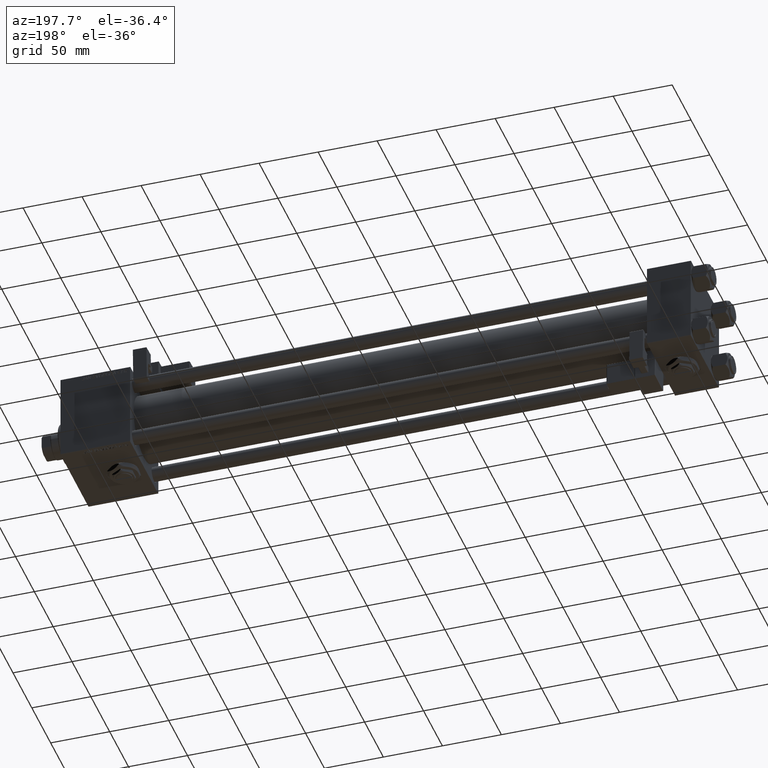
[diagram: clean part render]
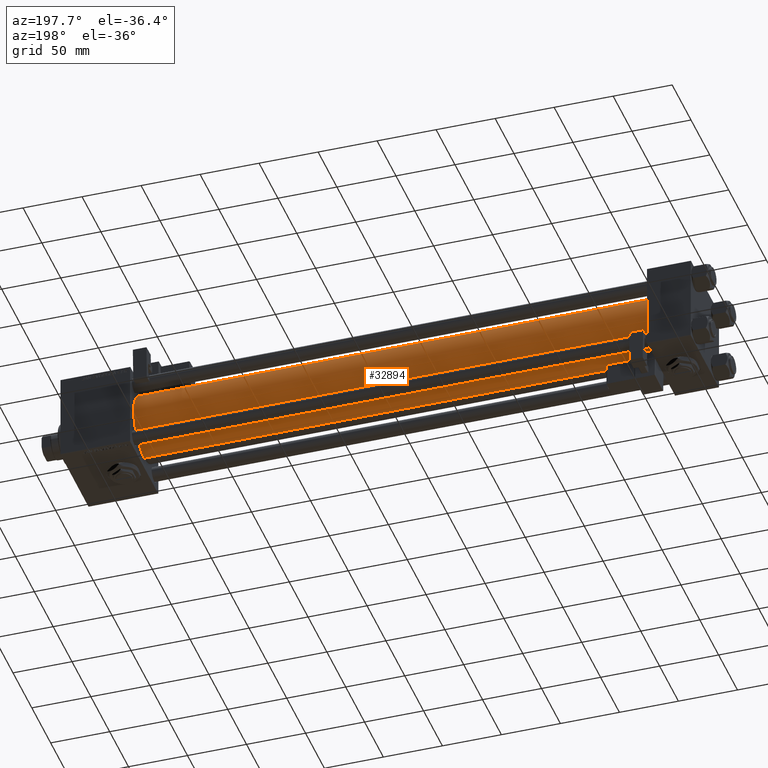
[diagram: same view with one face highlighted and labeled with its STEP entity id]
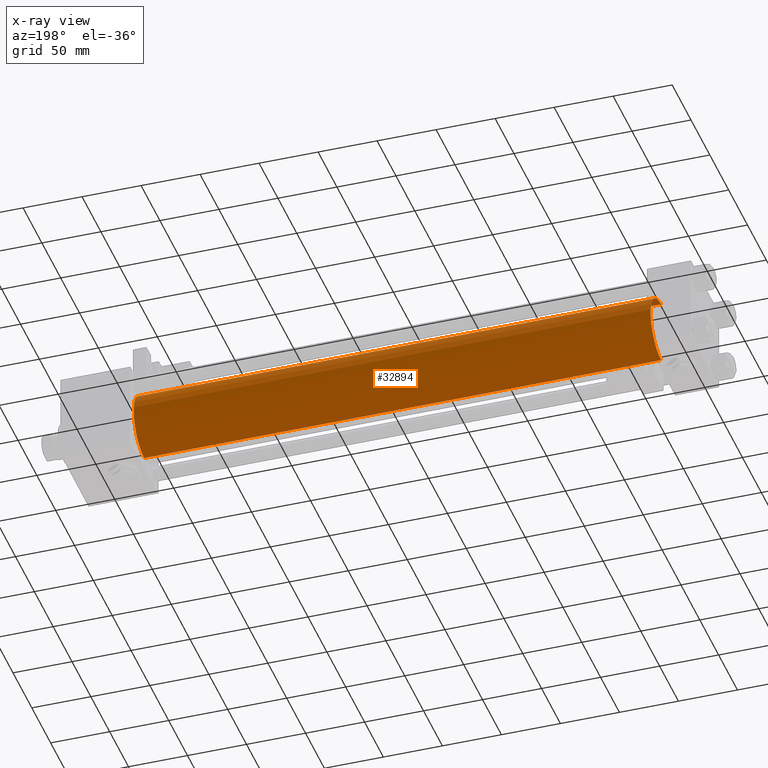
[diagram: x-ray of the same camera — body ghosted, the highlighted face saturated]
A machine part, auxiliary view. The second image highlights one B-rep face of the part: STEP entity #32894.
The next image is the same camera in x-ray: the body ghosted, the highlighted face saturated — about 0% of this face is hidden behind the body in this view.
In plain terms, the highlighted cylindrical surface (edge-blend (fillet) strip) has radius 28 mm, axis along (-1, -0, -0).
Its self-contained STEP definition (entity closure, byte-faithful):
#868 = EDGE_CURVE ( 'NONE', #45228, #27683, #4635, .T. ) ;
#1499 = CYLINDRICAL_SURFACE ( 'NONE', #31918, 28.00000000000000000 ) ;
#3925 = DIRECTION ( 'NONE',  ( 1.000000000000000000, 0.000000000000000000, 0.000000000000000000 ) ) ;
#4635 = CIRCLE ( 'NONE', #19927, 28.00000000000000000 ) ;
#9076 = AXIS2_PLACEMENT_3D ( 'NONE', #48037, #18404, #34786 ) ;
#9130 = CARTESIAN_POINT ( 'NONE',  ( 36.99999999999997868, -2.602085213965210642E-15, 28.00000000000000000 ) ) ;
#10911 = DIRECTION ( 'NONE',  ( -1.000000000000000000, -0.000000000000000000, -0.000000000000000000 ) ) ;
#11153 = ORIENTED_EDGE ( 'NONE', *, *, #15345, .T. ) ;
#12466 = ORIENTED_EDGE ( 'NONE', *, *, #868, .F. ) ;
#14321 = LINE ( 'NONE', #27292, #19943 ) ;
#14841 = CARTESIAN_POINT ( 'NONE',  ( 475.0000000000000000, -2.602085213965210642E-15, 28.00000000000000000 ) ) ;
#15114 = EDGE_LOOP ( 'NONE', ( #12466, #49572, #11153, #43200 ) ) ;
#15345 = EDGE_CURVE ( 'NONE', #35648, #32868, #18965, .T. ) ;
#16087 = EDGE_CURVE ( 'NONE', #45228, #35648, #14321, .T. ) ;
#18404 = DIRECTION ( 'NONE',  ( 1.000000000000000000, -0.000000000000000000, 0.000000000000000000 ) ) ;
#18965 = CIRCLE ( 'NONE', #9076, 28.00000000000000000 ) ;
#19927 = AXIS2_PLACEMENT_3D ( 'NONE', #24227, #3925, #32991 ) ;
#19943 = VECTOR ( 'NONE', #10911, 1000.000000000000000 ) ;
#21222 = CARTESIAN_POINT ( 'NONE',  ( 475.0000000000000000, 8.269258236473784371E-16, -28.00000000000000000 ) ) ;
#21392 = CARTESIAN_POINT ( 'NONE',  ( 36.99999999999997868, 8.269258236473784371E-16, -28.00000000000000000 ) ) ;
#22100 = DIRECTION ( 'NONE',  ( 0.000000000000000000, 0.000000000000000000, 1.000000000000000000 ) ) ;
#24227 = CARTESIAN_POINT ( 'NONE',  ( 475.0000000000000000, -2.602085213965210642E-15, 0.000000000000000000 ) ) ;
#26810 = CARTESIAN_POINT ( 'NONE',  ( 475.0000000000000000, -2.602085213965210642E-15, 28.00000000000000000 ) ) ;
#27156 = FACE_OUTER_BOUND ( 'NONE', #15114, .T. ) ;
#27253 = DIRECTION ( 'NONE',  ( -1.000000000000000000, -0.000000000000000000, -0.000000000000000000 ) ) ;
#27292 = CARTESIAN_POINT ( 'NONE',  ( 475.0000000000000000, 8.269258236473784371E-16, -28.00000000000000000 ) ) ;
#27683 = VERTEX_POINT ( 'NONE', #26810 ) ;
#30552 = CARTESIAN_POINT ( 'NONE',  ( 475.0000000000000000, -2.602085213965210642E-15, 0.000000000000000000 ) ) ;
#31918 = AXIS2_PLACEMENT_3D ( 'NONE', #30552, #43811, #22100 ) ;
#32868 = VERTEX_POINT ( 'NONE', #9130 ) ;
#32894 = ADVANCED_FACE ( 'NONE', ( #27156 ), #1499, .T. ) ;
#32991 = DIRECTION ( 'NONE',  ( 0.000000000000000000, 0.000000000000000000, -1.000000000000000000 ) ) ;
#34786 = DIRECTION ( 'NONE',  ( 0.000000000000000000, 0.000000000000000000, 1.000000000000000000 ) ) ;
#35648 = VERTEX_POINT ( 'NONE', #21392 ) ;
#42131 = EDGE_CURVE ( 'NONE', #27683, #32868, #53474, .T. ) ;
#43200 = ORIENTED_EDGE ( 'NONE', *, *, #42131, .F. ) ;
#43811 = DIRECTION ( 'NONE',  ( -1.000000000000000000, -0.000000000000000000, -0.000000000000000000 ) ) ;
#45228 = VERTEX_POINT ( 'NONE', #21222 ) ;
#48037 = CARTESIAN_POINT ( 'NONE',  ( 36.99999999999997868, -2.602085213965210642E-15, 0.000000000000000000 ) ) ;
#49572 = ORIENTED_EDGE ( 'NONE', *, *, #16087, .T. ) ;
#50301 = VECTOR ( 'NONE', #27253, 1000.000000000000000 ) ;
#53474 = LINE ( 'NONE', #14841, #50301 ) ;